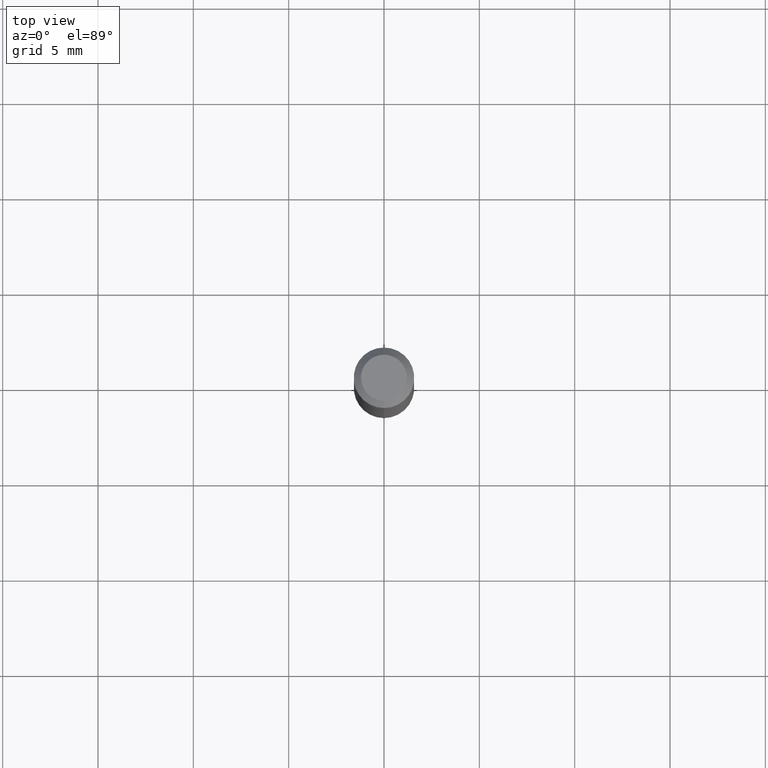
[diagram: clean part render]
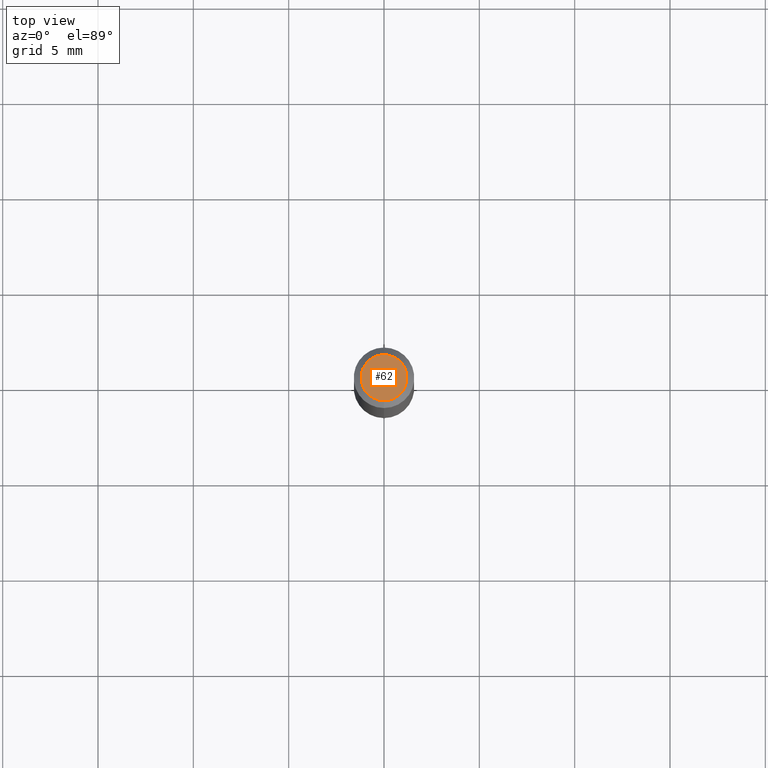
[diagram: same view with one face highlighted and labeled with its STEP entity id]
A machine part, top view. The second image highlights one B-rep face of the part: STEP entity #62.
In plain terms, the highlighted planar face has unit normal (0, -0, -1).
Its self-contained STEP definition (entity closure, byte-faithful):
#39 = EDGE_LOOP ( 'NONE', ( #41, #324 ) ) ;
#41 = ORIENTED_EDGE ( 'NONE', *, *, #230, .T. ) ;
#43 = VERTEX_POINT ( 'NONE', #137 ) ;
#55 = PLANE ( 'NONE',  #269 ) ;
#61 = DIRECTION ( 'NONE',  ( -6.982962677686266711E-15, -1.000000000000000000, 3.491463326750125716E-15 ) ) ;
#62 = ADVANCED_FACE ( 'NONE', ( #258 ), #55, .F. ) ;
#87 = EDGE_CURVE ( 'NONE', #43, #460, #320, .T. ) ;
#93 = CIRCLE ( 'NONE', #185, 0.04749999999999999362 ) ;
#109 = DIRECTION ( 'NONE',  ( -2.445481383962467149E-29, 3.491463326750125322E-15, 1.000000000000000000 ) ) ;
#137 = CARTESIAN_POINT ( 'NONE',  ( -3.773273898774340269E-16, -0.04749999999999999362, 1.569833328543813949E-16 ) ) ;
#140 = DIRECTION ( 'NONE',  ( -2.445481383962467149E-29, 3.491463326750125322E-15, 1.000000000000000000 ) ) ;
#183 = DIRECTION ( 'NONE',  ( -6.982962677686266711E-15, -1.000000000000000000, 3.491463326750125716E-15 ) ) ;
#185 = AXIS2_PLACEMENT_3D ( 'NONE', #265, #140, #61 ) ;
#217 = DIRECTION ( 'NONE',  ( 2.445481383962466869E-29, -3.491463326750125716E-15, -1.000000000000000000 ) ) ;
#224 = CARTESIAN_POINT ( 'NONE',  ( 2.166983890909381177E-46, -3.093846812486927280E-32, -8.861175166249556277E-18 ) ) ;
#230 = EDGE_CURVE ( 'NONE', #460, #43, #93, .T. ) ;
#251 = CARTESIAN_POINT ( 'NONE',  ( 3.840629472727447874E-16, 0.04749999999999999362, -1.747056831868805136E-16 ) ) ;
#258 = FACE_OUTER_BOUND ( 'NONE', #39, .T. ) ;
#265 = CARTESIAN_POINT ( 'NONE',  ( 2.166983890909381177E-46, -3.093846812486927280E-32, -8.861175166249556277E-18 ) ) ;
#269 = AXIS2_PLACEMENT_3D ( 'NONE', #340, #217, #494 ) ;
#320 = CIRCLE ( 'NONE', #412, 0.04749999999999999362 ) ;
#324 = ORIENTED_EDGE ( 'NONE', *, *, #87, .T. ) ;
#340 = CARTESIAN_POINT ( 'NONE',  ( 3.316907271900976096E-16, 0.04749999999999999362, -1.702750956037557278E-16 ) ) ;
#412 = AXIS2_PLACEMENT_3D ( 'NONE', #224, #109, #183 ) ;
#460 = VERTEX_POINT ( 'NONE', #251 ) ;
#494 = DIRECTION ( 'NONE',  ( 6.982962677686265922E-15, 1.000000000000000000, -3.491463326750125716E-15 ) ) ;